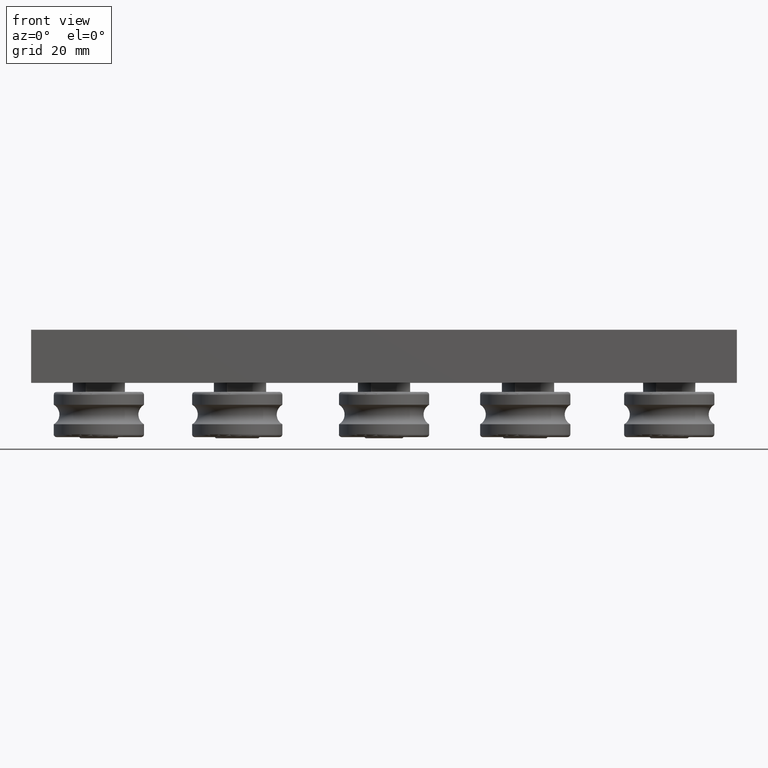
[diagram: clean part render]
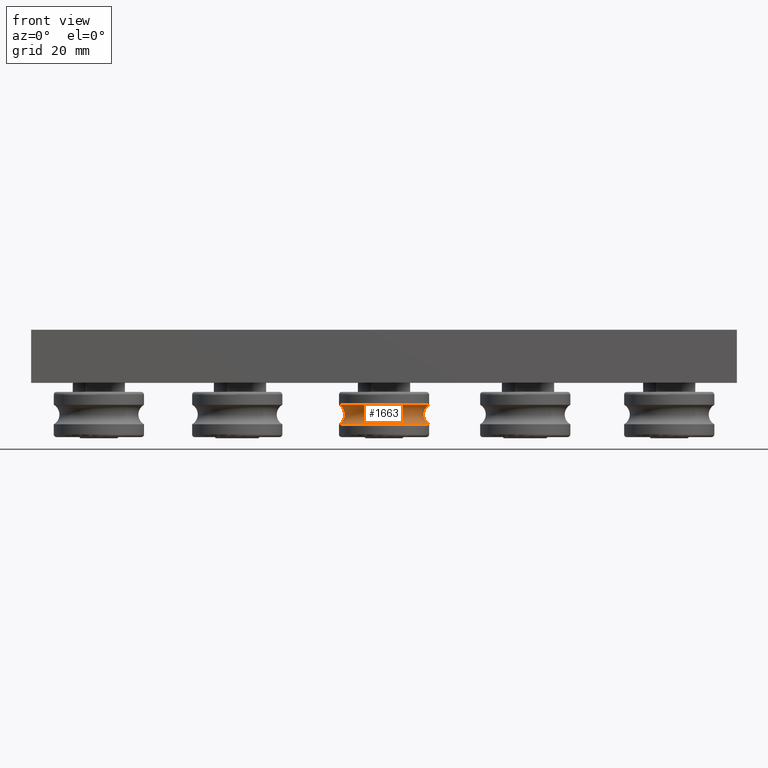
[diagram: same view with one face highlighted and labeled with its STEP entity id]
A machine part, front view. The second image highlights one B-rep face of the part: STEP entity #1663.
In plain terms, the highlighted toroidal blend (fillet) surface has major radius 9 mm and minor (blend) radius 2 mm.
Its self-contained STEP definition (entity closure, byte-faithful):
#84=TOROIDAL_SURFACE('',#1956,9.,2.);
#287=FACE_OUTER_BOUND('',#418,.T.);
#418=EDGE_LOOP('',(#1343,#1344,#1345,#1346,#1347,#1348));
#743=CIRCLE('',#1954,8.);
#744=CIRCLE('',#1955,8.);
#745=CIRCLE('',#1957,2.);
#746=CIRCLE('',#1958,8.);
#747=CIRCLE('',#1959,8.);
#864=VERTEX_POINT('',#2847);
#865=VERTEX_POINT('',#2848);
#866=VERTEX_POINT('',#2853);
#867=VERTEX_POINT('',#2855);
#1035=EDGE_CURVE('',#864,#865,#743,.T.);
#1037=EDGE_CURVE('',#865,#864,#744,.T.);
#1038=EDGE_CURVE('',#865,#866,#745,.T.);
#1039=EDGE_CURVE('',#867,#866,#746,.T.);
#1040=EDGE_CURVE('',#866,#867,#747,.T.);
#1343=ORIENTED_EDGE('',*,*,#1035,.T.);
#1344=ORIENTED_EDGE('',*,*,#1038,.T.);
#1345=ORIENTED_EDGE('',*,*,#1039,.F.);
#1346=ORIENTED_EDGE('',*,*,#1040,.F.);
#1347=ORIENTED_EDGE('',*,*,#1038,.F.);
#1348=ORIENTED_EDGE('',*,*,#1037,.T.);
#1663=ADVANCED_FACE('',(#287),#84,.F.);
#1954=AXIS2_PLACEMENT_3D('',#2849,#2318,#2319);
#1955=AXIS2_PLACEMENT_3D('',#2851,#2321,#2322);
#1956=AXIS2_PLACEMENT_3D('',#2852,#2323,#2324);
#1957=AXIS2_PLACEMENT_3D('',#2854,#2325,#2326);
#1958=AXIS2_PLACEMENT_3D('',#2856,#2327,#2328);
#1959=AXIS2_PLACEMENT_3D('',#2857,#2329,#2330);
#2318=DIRECTION('center_axis',(0.,0.,-1.));
#2319=DIRECTION('ref_axis',(1.,0.,0.));
#2321=DIRECTION('center_axis',(0.,0.,-1.));
#2322=DIRECTION('ref_axis',(1.,0.,0.));
#2323=DIRECTION('center_axis',(0.,0.,-1.));
#2324=DIRECTION('ref_axis',(-1.,0.,0.));
#2325=DIRECTION('center_axis',(-1.22464679914735E-16,-1.,0.));
#2326=DIRECTION('ref_axis',(1.,-1.22464679914735E-16,0.));
#2327=DIRECTION('center_axis',(0.,0.,-1.));
#2328=DIRECTION('ref_axis',(1.,0.,0.));
#2329=DIRECTION('center_axis',(0.,0.,-1.));
#2330=DIRECTION('ref_axis',(1.,0.,0.));
#2847=CARTESIAN_POINT('',(-9.79717439317883E-16,-8.,1.73205080756888));
#2848=CARTESIAN_POINT('',(8.,-9.79717439317883E-16,1.73205080756888));
#2849=CARTESIAN_POINT('Origin',(0.,0.,1.73205080756888));
#2851=CARTESIAN_POINT('Origin',(0.,0.,1.73205080756888));
#2852=CARTESIAN_POINT('Origin',(0.,0.,0.));
#2853=CARTESIAN_POINT('',(8.,-9.79717439317883E-16,-1.73205080756888));
#2854=CARTESIAN_POINT('Origin',(9.,-1.10218211923262E-15,0.));
#2855=CARTESIAN_POINT('',(-9.79717439317883E-16,-8.,-1.73205080756888));
#2856=CARTESIAN_POINT('Origin',(0.,0.,-1.73205080756888));
#2857=CARTESIAN_POINT('Origin',(0.,0.,-1.73205080756888));